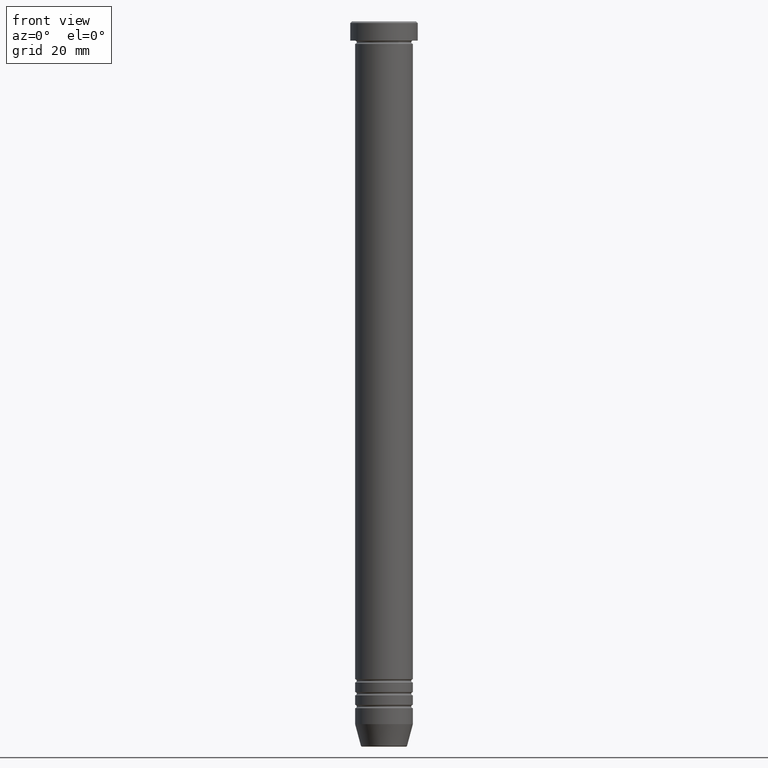
[diagram: clean part render]
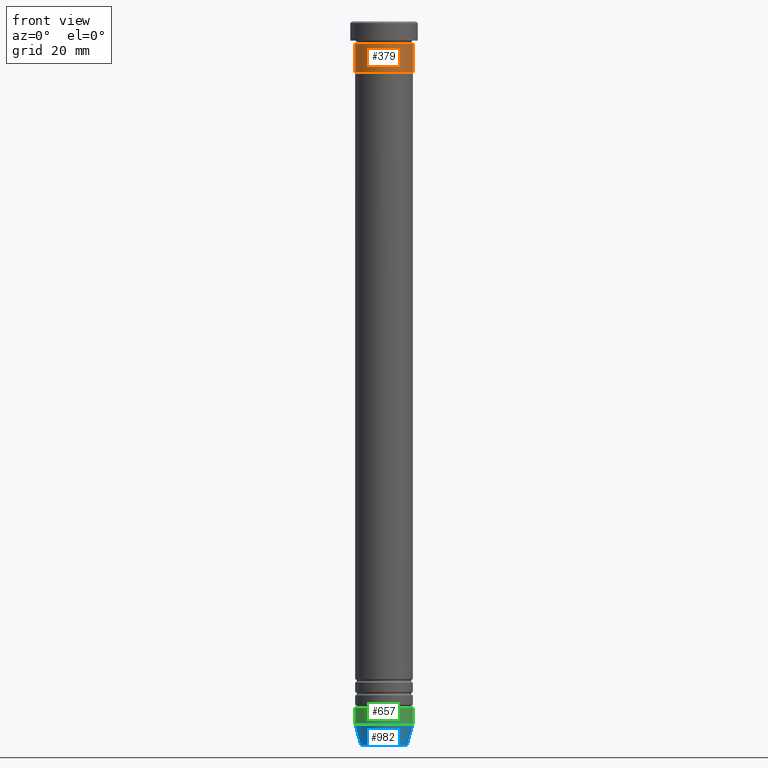
[diagram: same view with three faces highlighted in distinct colors, each labeled with its STEP entity id]
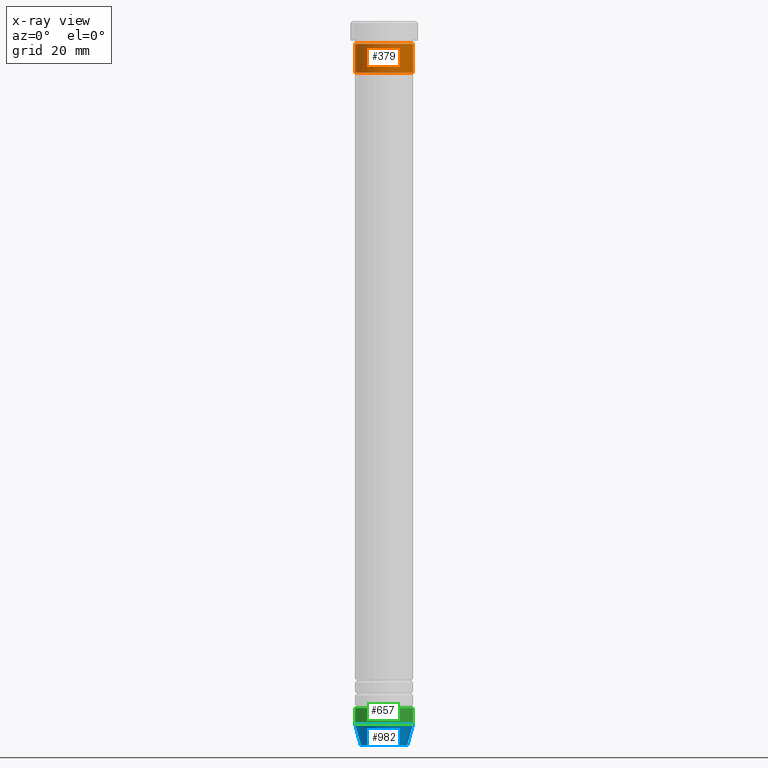
[diagram: x-ray of the same camera — body ghosted, the three highlighted faces saturated]
A machine part, front view with three faces highlighted in distinct colors.
The next image is the same camera in x-ray (body ghosted, the three faces saturated) — at least one of them is partly hidden behind the body in this view.
Their STEP definitions:

[orange] entity #379 — the highlighted cylindrical surface (edge-blend (fillet) strip) has radius 9 mm, axis along (-0, -0, 1).
#42 = DIRECTION ( 'NONE',  ( -0.000000000000000000, -0.000000000000000000, 1.000000000000000000 ) ) ;
#65 = DIRECTION ( 'NONE',  ( -0.000000000000000000, -0.000000000000000000, 1.000000000000000000 ) ) ;
#115 = EDGE_CURVE ( 'NONE', #1104, #525, #424, .T. ) ;
#131 = CARTESIAN_POINT ( 'NONE',  ( -9.000000000000000000, 1.102182119232617714E-15, -16.00000000000000000 ) ) ;
#136 = VECTOR ( 'NONE', #958, 1000.000000000000000 ) ;
#137 = CIRCLE ( 'NONE', #973, 9.000000000000000000 ) ;
#236 = VECTOR ( 'NONE', #355, 1000.000000000000000 ) ;
#310 = EDGE_CURVE ( 'NONE', #1077, #1139, #351, .T. ) ;
#341 = DIRECTION ( 'NONE',  ( 1.000000000000000000, 0.000000000000000000, 0.000000000000000000 ) ) ;
#345 = ORIENTED_EDGE ( 'NONE', *, *, #1040, .F. ) ;
#351 = LINE ( 'NONE', #1052, #136 ) ;
#355 = DIRECTION ( 'NONE',  ( -0.000000000000000000, -0.000000000000000000, 1.000000000000000000 ) ) ;
#379 = ADVANCED_FACE ( 'NONE', ( #1133 ), #769, .T. ) ;
#395 = CARTESIAN_POINT ( 'NONE',  ( 0.000000000000000000, 0.000000000000000000, -16.00000000000000000 ) ) ;
#424 = LINE ( 'NONE', #956, #236 ) ;
#521 = EDGE_LOOP ( 'NONE', ( #1128, #610, #1108, #345 ) ) ;
#525 = VERTEX_POINT ( 'NONE', #842 ) ;
#543 = AXIS2_PLACEMENT_3D ( 'NONE', #1115, #65, #341 ) ;
#552 = DIRECTION ( 'NONE',  ( -0.000000000000000000, -0.000000000000000000, 1.000000000000000000 ) ) ;
#610 = ORIENTED_EDGE ( 'NONE', *, *, #802, .T. ) ;
#726 = CARTESIAN_POINT ( 'NONE',  ( 0.000000000000000000, 0.000000000000000000, -7.000000000000000000 ) ) ;
#769 = CYLINDRICAL_SURFACE ( 'NONE', #543, 9.000000000000000000 ) ;
#802 = EDGE_CURVE ( 'NONE', #1077, #1104, #137, .T. ) ;
#830 = DIRECTION ( 'NONE',  ( 1.000000000000000000, 0.000000000000000000, 0.000000000000000000 ) ) ;
#842 = CARTESIAN_POINT ( 'NONE',  ( 9.000000000000000000, 0.000000000000000000, -7.000000000000000000 ) ) ;
#857 = CIRCLE ( 'NONE', #1140, 9.000000000000000000 ) ;
#863 = CARTESIAN_POINT ( 'NONE',  ( -9.000000000000000000, 1.102182119232617714E-15, -7.000000000000000000 ) ) ;
#903 = DIRECTION ( 'NONE',  ( 1.000000000000000000, 0.000000000000000000, 0.000000000000000000 ) ) ;
#956 = CARTESIAN_POINT ( 'NONE',  ( 9.000000000000000000, 0.000000000000000000, 0.000000000000000000 ) ) ;
#958 = DIRECTION ( 'NONE',  ( -0.000000000000000000, -0.000000000000000000, 1.000000000000000000 ) ) ;
#973 = AXIS2_PLACEMENT_3D ( 'NONE', #395, #42, #830 ) ;
#1040 = EDGE_CURVE ( 'NONE', #1139, #525, #857, .T. ) ;
#1052 = CARTESIAN_POINT ( 'NONE',  ( -9.000000000000000000, 1.102182119232617714E-15, 0.000000000000000000 ) ) ;
#1077 = VERTEX_POINT ( 'NONE', #131 ) ;
#1104 = VERTEX_POINT ( 'NONE', #1131 ) ;
#1108 = ORIENTED_EDGE ( 'NONE', *, *, #115, .T. ) ;
#1115 = CARTESIAN_POINT ( 'NONE',  ( 0.000000000000000000, 0.000000000000000000, 0.000000000000000000 ) ) ;
#1128 = ORIENTED_EDGE ( 'NONE', *, *, #310, .F. ) ;
#1131 = CARTESIAN_POINT ( 'NONE',  ( 9.000000000000000000, 0.000000000000000000, -16.00000000000000000 ) ) ;
#1133 = FACE_OUTER_BOUND ( 'NONE', #521, .T. ) ;
#1139 = VERTEX_POINT ( 'NONE', #863 ) ;
#1140 = AXIS2_PLACEMENT_3D ( 'NONE', #726, #552, #903 ) ;

[blue] entity #982 — the highlighted conical surface has half-angle 15 deg.
#14 = DIRECTION ( 'NONE',  ( -0.2588190451025205729, 3.169619151431761860E-17, 0.9659258262890683122 ) ) ;
#43 = ORIENTED_EDGE ( 'NONE', *, *, #577, .F. ) ;
#99 = FACE_OUTER_BOUND ( 'NONE', #411, .T. ) ;
#144 = CARTESIAN_POINT ( 'NONE',  ( 0.000000000000000000, 0.000000000000000000, -218.9999999999999716 ) ) ;
#169 = VERTEX_POINT ( 'NONE', #494 ) ;
#200 = EDGE_CURVE ( 'NONE', #325, #946, #708, .T. ) ;
#228 = LINE ( 'NONE', #661, #900 ) ;
#284 = CARTESIAN_POINT ( 'NONE',  ( 7.223655072137196598, 0.000000000000000000, -225.6294095225512422 ) ) ;
#290 = CARTESIAN_POINT ( 'NONE',  ( 0.000000000000000000, 0.000000000000000000, -225.6294095225512422 ) ) ;
#325 = VERTEX_POINT ( 'NONE', #439 ) ;
#372 = LINE ( 'NONE', #554, #1117 ) ;
#383 = CARTESIAN_POINT ( 'NONE',  ( 0.000000000000000000, 0.000000000000000000, -225.9999999999999716 ) ) ;
#394 = DIRECTION ( 'NONE',  ( -0.000000000000000000, -0.000000000000000000, 1.000000000000000000 ) ) ;
#400 = DIRECTION ( 'NONE',  ( 1.000000000000000000, 0.000000000000000000, 0.000000000000000000 ) ) ;
#411 = EDGE_LOOP ( 'NONE', ( #43, #468, #846, #684 ) ) ;
#439 = CARTESIAN_POINT ( 'NONE',  ( -9.000000000000000000, 1.102182119232617714E-15, -218.9999999999999716 ) ) ;
#468 = ORIENTED_EDGE ( 'NONE', *, *, #889, .T. ) ;
#494 = CARTESIAN_POINT ( 'NONE',  ( -7.223655072137196598, 9.934123627281769054E-16, -225.6294095225512422 ) ) ;
#499 = DIRECTION ( 'NONE',  ( -0.000000000000000000, -0.000000000000000000, 1.000000000000000000 ) ) ;
#539 = CARTESIAN_POINT ( 'NONE',  ( 9.000000000000000000, 0.000000000000000000, -218.9999999999999716 ) ) ;
#554 = CARTESIAN_POINT ( 'NONE',  ( 7.124355652982139908, 0.000000000000000000, -225.9999999999999716 ) ) ;
#567 = AXIS2_PLACEMENT_3D ( 'NONE', #290, #394, #812 ) ;
#577 = EDGE_CURVE ( 'NONE', #169, #325, #228, .T. ) ;
#636 = DIRECTION ( 'NONE',  ( -0.000000000000000000, -0.000000000000000000, 1.000000000000000000 ) ) ;
#661 = CARTESIAN_POINT ( 'NONE',  ( -7.124355652982139908, 8.724819346411930032E-16, -225.9999999999999716 ) ) ;
#667 = EDGE_CURVE ( 'NONE', #865, #946, #372, .T. ) ;
#684 = ORIENTED_EDGE ( 'NONE', *, *, #200, .F. ) ;
#708 = CIRCLE ( 'NONE', #1023, 9.000000000000000000 ) ;
#713 = DIRECTION ( 'NONE',  ( 0.2588190451025205729, 0.000000000000000000, 0.9659258262890683122 ) ) ;
#812 = DIRECTION ( 'NONE',  ( -1.000000000000000000, 0.000000000000000000, 0.000000000000000000 ) ) ;
#846 = ORIENTED_EDGE ( 'NONE', *, *, #667, .T. ) ;
#865 = VERTEX_POINT ( 'NONE', #284 ) ;
#889 = EDGE_CURVE ( 'NONE', #169, #865, #1081, .T. ) ;
#900 = VECTOR ( 'NONE', #14, 1000.000000000000114 ) ;
#946 = VERTEX_POINT ( 'NONE', #539 ) ;
#982 = ADVANCED_FACE ( 'NONE', ( #99 ), #990, .T. ) ;
#990 = CONICAL_SURFACE ( 'NONE', #1118, 7.124355652982139908, 0.2617993877991492413 ) ;
#1023 = AXIS2_PLACEMENT_3D ( 'NONE', #144, #499, #400 ) ;
#1073 = DIRECTION ( 'NONE',  ( 1.000000000000000000, 0.000000000000000000, 0.000000000000000000 ) ) ;
#1081 = CIRCLE ( 'NONE', #567, 7.223655072137196598 ) ;
#1117 = VECTOR ( 'NONE', #713, 1000.000000000000114 ) ;
#1118 = AXIS2_PLACEMENT_3D ( 'NONE', #383, #636, #1073 ) ;

[green] entity #657 — the highlighted cylindrical surface (edge-blend (fillet) strip) has radius 9 mm, axis along (-0, -0, 1).
#9 = ORIENTED_EDGE ( 'NONE', *, *, #786, .F. ) ;
#10 = AXIS2_PLACEMENT_3D ( 'NONE', #324, #741, #398 ) ;
#19 = CARTESIAN_POINT ( 'NONE',  ( 0.000000000000000000, 0.000000000000000000, 0.000000000000000000 ) ) ;
#73 = CARTESIAN_POINT ( 'NONE',  ( -9.000000000000000000, 1.102182119232617714E-15, 0.000000000000000000 ) ) ;
#144 = CARTESIAN_POINT ( 'NONE',  ( 0.000000000000000000, 0.000000000000000000, -218.9999999999999716 ) ) ;
#178 = VECTOR ( 'NONE', #180, 1000.000000000000000 ) ;
#179 = ORIENTED_EDGE ( 'NONE', *, *, #200, .T. ) ;
#180 = DIRECTION ( 'NONE',  ( -0.000000000000000000, -0.000000000000000000, 1.000000000000000000 ) ) ;
#200 = EDGE_CURVE ( 'NONE', #325, #946, #708, .T. ) ;
#208 = DIRECTION ( 'NONE',  ( 1.000000000000000000, 0.000000000000000000, 0.000000000000000000 ) ) ;
#235 = ORIENTED_EDGE ( 'NONE', *, *, #782, .F. ) ;
#258 = DIRECTION ( 'NONE',  ( -0.000000000000000000, -0.000000000000000000, 1.000000000000000000 ) ) ;
#267 = LINE ( 'NONE', #1062, #178 ) ;
#324 = CARTESIAN_POINT ( 'NONE',  ( 0.000000000000000000, 0.000000000000000000, -213.9999999999999716 ) ) ;
#325 = VERTEX_POINT ( 'NONE', #439 ) ;
#330 = VERTEX_POINT ( 'NONE', #692 ) ;
#365 = DIRECTION ( 'NONE',  ( -0.000000000000000000, -0.000000000000000000, 1.000000000000000000 ) ) ;
#398 = DIRECTION ( 'NONE',  ( 1.000000000000000000, 0.000000000000000000, 0.000000000000000000 ) ) ;
#400 = DIRECTION ( 'NONE',  ( 1.000000000000000000, 0.000000000000000000, 0.000000000000000000 ) ) ;
#439 = CARTESIAN_POINT ( 'NONE',  ( -9.000000000000000000, 1.102182119232617714E-15, -218.9999999999999716 ) ) ;
#499 = DIRECTION ( 'NONE',  ( -0.000000000000000000, -0.000000000000000000, 1.000000000000000000 ) ) ;
#539 = CARTESIAN_POINT ( 'NONE',  ( 9.000000000000000000, 0.000000000000000000, -218.9999999999999716 ) ) ;
#550 = FACE_OUTER_BOUND ( 'NONE', #750, .T. ) ;
#637 = CARTESIAN_POINT ( 'NONE',  ( -9.000000000000000000, 1.102182119232617714E-15, -213.9999999999999716 ) ) ;
#657 = ADVANCED_FACE ( 'NONE', ( #550 ), #994, .T. ) ;
#692 = CARTESIAN_POINT ( 'NONE',  ( 9.000000000000000000, 0.000000000000000000, -213.9999999999999716 ) ) ;
#697 = VECTOR ( 'NONE', #258, 1000.000000000000000 ) ;
#708 = CIRCLE ( 'NONE', #1023, 9.000000000000000000 ) ;
#741 = DIRECTION ( 'NONE',  ( -0.000000000000000000, -0.000000000000000000, 1.000000000000000000 ) ) ;
#750 = EDGE_LOOP ( 'NONE', ( #235, #179, #1099, #9 ) ) ;
#782 = EDGE_CURVE ( 'NONE', #325, #890, #862, .T. ) ;
#786 = EDGE_CURVE ( 'NONE', #890, #330, #1137, .T. ) ;
#862 = LINE ( 'NONE', #73, #697 ) ;
#890 = VERTEX_POINT ( 'NONE', #637 ) ;
#946 = VERTEX_POINT ( 'NONE', #539 ) ;
#947 = EDGE_CURVE ( 'NONE', #946, #330, #267, .T. ) ;
#994 = CYLINDRICAL_SURFACE ( 'NONE', #1048, 9.000000000000000000 ) ;
#1023 = AXIS2_PLACEMENT_3D ( 'NONE', #144, #499, #400 ) ;
#1048 = AXIS2_PLACEMENT_3D ( 'NONE', #19, #365, #208 ) ;
#1062 = CARTESIAN_POINT ( 'NONE',  ( 9.000000000000000000, 0.000000000000000000, 0.000000000000000000 ) ) ;
#1099 = ORIENTED_EDGE ( 'NONE', *, *, #947, .T. ) ;
#1137 = CIRCLE ( 'NONE', #10, 9.000000000000000000 ) ;